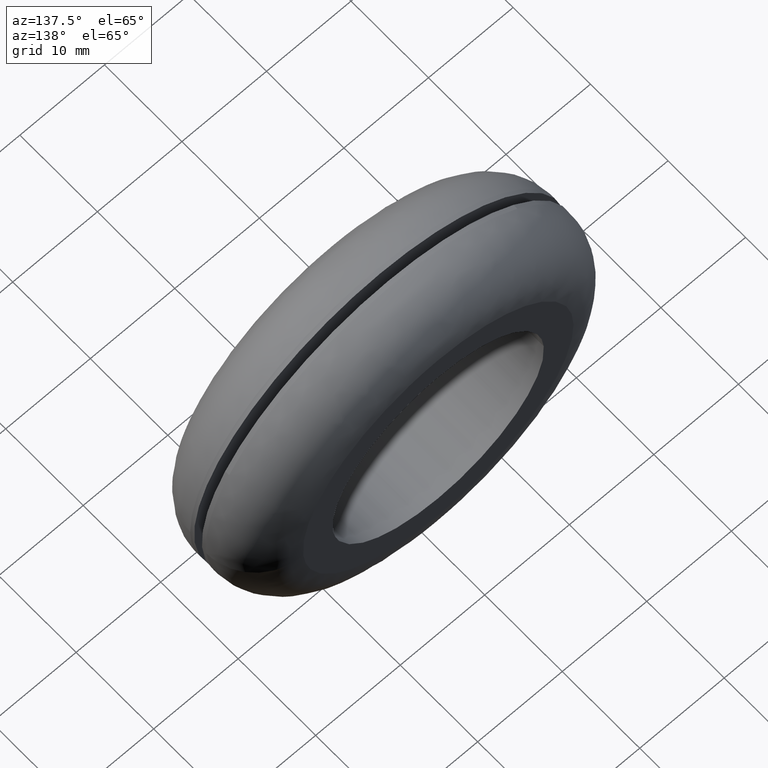
[diagram: clean part render]
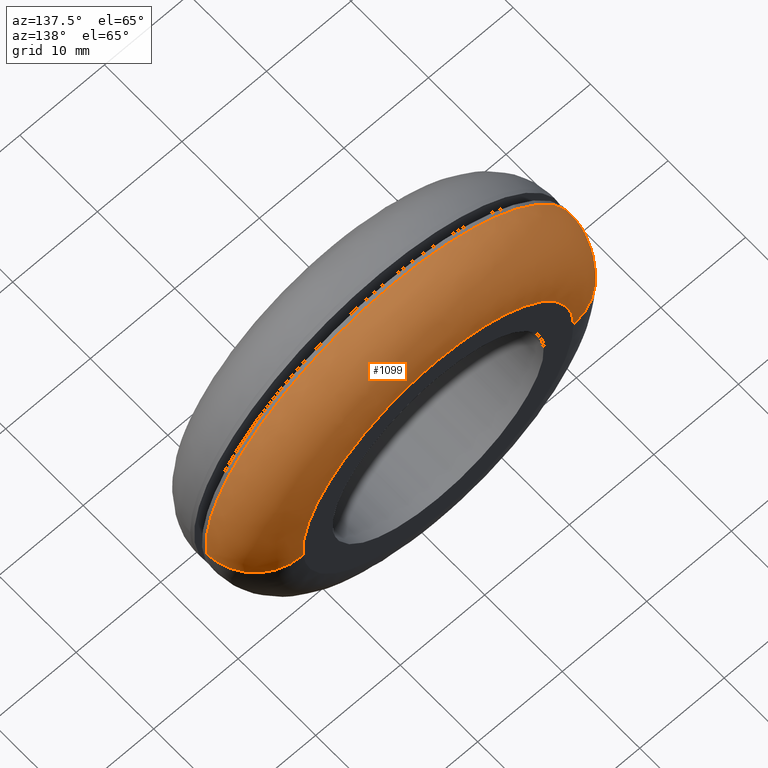
[diagram: same view with one face highlighted and labeled with its STEP entity id]
A machine part, auxiliary view. The second image highlights one B-rep face of the part: STEP entity #1099.
In plain terms, the highlighted face is a freeform B-spline surface patch.
Its self-contained STEP definition (entity closure, byte-faithful):
#464=CARTESIAN_POINT('',(19.248823373757212,8.000000000000533,10.652830549946870));
#465=VERTEX_POINT('',#464);
#466=CARTESIAN_POINT('',(0.0,8.0,22.0));
#467=VERTEX_POINT('',#466);
#468=CARTESIAN_POINT('',(19.248823373757208,8.000000000000533,10.652830549946874));
#469=CARTESIAN_POINT('',(12.968986366278509,8.000000000000002,22.000000000000007));
#470=CARTESIAN_POINT('',(0.0,8.0,22.0));
#478=(BOUNDED_CURVE()B_SPLINE_CURVE(2,(#468,#469,#470),.UNSPECIFIED.,.F.,.U.)B_SPLINE_CURVE_WITH_KNOTS((3,3),(0.332484260513294,0.500000000000000),.UNSPECIFIED.)CURVE()GEOMETRIC_REPRESENTATION_ITEM()RATIONAL_B_SPLINE_CURVE((0.870495160132448,0.803743103439292,1.0))REPRESENTATION_ITEM(''));
#479=EDGE_CURVE('',#465,#467,#478,.T.);
#481=CARTESIAN_POINT('',(-14.862983672340979,8.000000000013181,16.220102230123938));
#482=VERTEX_POINT('',#481);
#483=CARTESIAN_POINT('',(0.0,8.0,22.0));
#484=CARTESIAN_POINT('',(-8.555331401854355,8.000000000000002,21.999999999999996));
#485=CARTESIAN_POINT('',(-14.862983672340976,8.000000000013182,16.220102230123949));
#493=(BOUNDED_CURVE()B_SPLINE_CURVE(2,(#483,#484,#485),.UNSPECIFIED.,.F.,.U.)B_SPLINE_CURVE_WITH_KNOTS((3,3),(0.500000000000000,0.618415200752421),.UNSPECIFIED.)CURVE()GEOMETRIC_REPRESENTATION_ITEM()RATIONAL_B_SPLINE_CURVE((1.0,0.861267962780729,0.853959781866357))REPRESENTATION_ITEM(''));
#494=EDGE_CURVE('',#467,#482,#493,.T.);
#563=CARTESIAN_POINT('',(21.946444824489291,8.000000000050179,-1.534131534662882));
#564=VERTEX_POINT('',#563);
#565=CARTESIAN_POINT('',(21.946444824489294,8.000000000050179,-1.534131534662883));
#566=CARTESIAN_POINT('',(22.000000000000004,8.0,-0.768000549246831));
#567=CARTESIAN_POINT('',(22.0,8.0,-3.673819E-016));
#568=CARTESIAN_POINT('',(21.999999999999996,8.0,5.681671692190288));
#569=CARTESIAN_POINT('',(19.248823373757208,8.000000000000533,10.652830549946874));
#577=(BOUNDED_CURVE()B_SPLINE_CURVE(2,(#565,#566,#567,#568,#569),.UNSPECIFIED.,.F.,.U.)B_SPLINE_CURVE_WITH_KNOTS((3,2,3),(0.237833686535085,0.250000000000000,0.332484260513294),.UNSPECIFIED.)CURVE()GEOMETRIC_REPRESENTATION_ITEM()RATIONAL_B_SPLINE_CURVE((0.972879876386962,0.985746277152670,1.0,0.903363677747256,0.870495160132448))REPRESENTATION_ITEM(''));
#578=EDGE_CURVE('',#564,#465,#577,.T.);
#614=CARTESIAN_POINT('',(-21.998262972483801,8.000000000050177,0.276452877445863));
#615=VERTEX_POINT('',#614);
#616=CARTESIAN_POINT('',(-14.862983672340976,8.000000000013182,16.220102230123949));
#617=CARTESIAN_POINT('',(-21.878688401845952,8.000000000028200,9.791393991096818));
#618=CARTESIAN_POINT('',(-21.998262972483801,8.000000000050177,0.276452877445863));
#626=(BOUNDED_CURVE()B_SPLINE_CURVE(2,(#616,#617,#618),.UNSPECIFIED.,.F.,.U.)B_SPLINE_CURVE_WITH_KNOTS((3,3),(0.618415200752421,0.747784295921534),.UNSPECIFIED.)CURVE()GEOMETRIC_REPRESENTATION_ITEM()RATIONAL_B_SPLINE_CURVE((0.853959781866357,0.845975564078294,0.994854295643565))REPRESENTATION_ITEM(''));
#627=EDGE_CURVE('',#482,#615,#626,.T.);
#1004=CARTESIAN_POINT('',(15.544843214984359,13.985476149087738,-1.086636831070917));
#1005=CARTESIAN_POINT('',(15.575942264228871,13.985476149087750,-0.641750526081099));
#1006=CARTESIAN_POINT('',(15.581546365469604,13.985476149087749,-0.195813793706776));
#1007=CARTESIAN_POINT('',(15.777360159176384,13.985476149087745,15.385732571762828));
#1008=CARTESIAN_POINT('',(0.195813793706777,13.985476149087749,15.581546365469604));
#1009=CARTESIAN_POINT('',(-15.385732571762828,13.985476149087745,15.777360159176384));
#1010=CARTESIAN_POINT('',(-15.581546365469604,13.985476149087749,0.195813793706777));
#1011=CARTESIAN_POINT('',(22.410535455934841,14.465223589334373,-1.566571813793874));
#1012=CARTESIAN_POINT('',(22.455370024936347,14.465223589334371,-0.925192536180866));
#1013=CARTESIAN_POINT('',(22.463449290054530,14.465223589334373,-0.282298888830010));
#1014=CARTESIAN_POINT('',(22.745748178884529,14.465223589334371,22.181150401224510));
#1015=CARTESIAN_POINT('',(0.282298888830011,14.465223589334373,22.463449290054530));
#1016=CARTESIAN_POINT('',(-22.181150401224510,14.465223589334371,22.745748178884536));
#1017=CARTESIAN_POINT('',(-22.463449290054530,14.465223589334373,0.282298888830013));
#1018=CARTESIAN_POINT('',(21.931956448723739,7.582777215670896,-1.533117531327285));
#1019=CARTESIAN_POINT('',(21.975833571457901,7.582777215670893,-0.905434966072147));
#1020=CARTESIAN_POINT('',(21.983740303140337,7.582777215670896,-0.276270370581586));
#1021=CARTESIAN_POINT('',(22.260010673721919,7.582777215670895,21.707469932558734));
#1022=CARTESIAN_POINT('',(0.276270370581587,7.582777215670896,21.983740303140337));
#1023=CARTESIAN_POINT('',(-21.707469932558734,7.582777215670895,22.260010673721919));
#1024=CARTESIAN_POINT('',(-21.983740303140337,7.582777215670896,0.276270370581588));
#1032=(BOUNDED_SURFACE()B_SPLINE_SURFACE(2,2,((#1004,#1011,#1018),(#1005,#1012,#1019),(#1006,#1013,#1020),(#1007,#1014,#1021),(#1008,#1015,#1022),(#1009,#1016,#1023),(#1010,#1017,#1024)),.UNSPECIFIED.,.F.,.F.,.U.)B_SPLINE_SURFACE_WITH_KNOTS((3,2,2,3),(3,3),(0.0,1.457067796127990,37.883797438564237,74.310527081000487),(0.0,10.934244388405540),.UNSPECIFIED.)GEOMETRIC_REPRESENTATION_ITEM()RATIONAL_B_SPLINE_SURFACE(((0.895729780140252,0.587800196502176,0.895729746073599),(0.905606538263746,0.594281571236513,0.905606503821457),(0.916342144029433,0.601326543189608,0.916342109178844),(0.647951743930232,0.425202076396837,0.647951719287144),(0.916342144029433,0.601326543189608,0.916342109178844),(0.647951743930232,0.425202076396837,0.647951719287144),(0.916342144029433,0.601326543189608,0.916342109178844)))REPRESENTATION_ITEM('')SURFACE());
#1033=ORIENTED_EDGE('',*,*,#479,.F.);
#1034=ORIENTED_EDGE('',*,*,#578,.F.);
#1035=CARTESIAN_POINT('',(15.961050781845570,14.0,-1.115732025297409));
#1036=VERTEX_POINT('',#1035);
#1037=CARTESIAN_POINT('',(15.961050781845568,14.000000000000004,-1.115732025297409));
#1038=CARTESIAN_POINT('',(21.946444824389399,13.999999999192037,-1.534131534652715));
#1039=CARTESIAN_POINT('',(21.946444824489291,8.000000000050179,-1.534131534662882));
#1047=(BOUNDED_CURVE()B_SPLINE_CURVE(2,(#1037,#1038,#1039),.UNSPECIFIED.,.F.,.U.)B_SPLINE_CURVE_WITH_KNOTS((3,3),(-1.734750791518477,-0.265249208358978),.UNSPECIFIED.)CURVE()GEOMETRIC_REPRESENTATION_ITEM()RATIONAL_B_SPLINE_CURVE((0.869031711826787,0.614498216560397,0.869031711869240))REPRESENTATION_ITEM(''));
#1048=EDGE_CURVE('',#1036,#564,#1047,.T.);
#1049=ORIENTED_EDGE('',*,*,#1048,.F.);
#1050=CARTESIAN_POINT('',(0.0,14.0,16.0));
#1051=VERTEX_POINT('',#1050);
#1052=CARTESIAN_POINT('',(15.961050781845566,13.999999999999996,-1.115732025297410));
#1053=CARTESIAN_POINT('',(15.999999999999998,13.999999999999996,-0.558545854057783));
#1054=CARTESIAN_POINT('',(16.0,14.0,-3.673819E-016));
#1055=CARTESIAN_POINT('',(15.999999999999998,13.999999999999998,15.999999999999998));
#1056=CARTESIAN_POINT('',(0.0,14.0,16.0));
#1064=(BOUNDED_CURVE()B_SPLINE_CURVE(2,(#1052,#1053,#1054,#1055,#1056),.UNSPECIFIED.,.F.,.U.)B_SPLINE_CURVE_WITH_KNOTS((3,2,3),(0.237833686533795,0.250000000000000,0.500000000000000),.UNSPECIFIED.)CURVE()GEOMETRIC_REPRESENTATION_ITEM()RATIONAL_B_SPLINE_CURVE((0.972879876384233,0.985746277151159,1.0,0.707106781186548,1.0))REPRESENTATION_ITEM(''));
#1065=EDGE_CURVE('',#1036,#1051,#1064,.T.);
#1066=ORIENTED_EDGE('',*,*,#1065,.T.);
#1067=CARTESIAN_POINT('',(-15.998736707370449,14.0,0.201056638142736));
#1068=VERTEX_POINT('',#1067);
#1069=CARTESIAN_POINT('',(0.0,14.0,16.0));
#1070=CARTESIAN_POINT('',(-15.800190878501752,13.999999999999998,16.000000000000004));
#1071=CARTESIAN_POINT('',(-15.998736707370455,14.000000000000005,0.201056638142736));
#1079=(BOUNDED_CURVE()B_SPLINE_CURVE(2,(#1069,#1070,#1071),.UNSPECIFIED.,.F.,.U.)B_SPLINE_CURVE_WITH_KNOTS((3,3),(0.500000000000000,0.747784295921558),.UNSPECIFIED.)CURVE()GEOMETRIC_REPRESENTATION_ITEM()RATIONAL_B_SPLINE_CURVE((1.0,0.709702639984439,0.994854295643621))REPRESENTATION_ITEM(''));
#1080=EDGE_CURVE('',#1051,#1068,#1079,.T.);
#1081=ORIENTED_EDGE('',*,*,#1080,.T.);
#1082=CARTESIAN_POINT('',(-15.998736707370451,14.000000000000005,0.201056638142736));
#1083=CARTESIAN_POINT('',(-21.998262972383596,13.999999999780993,0.276452877432481));
#1084=CARTESIAN_POINT('',(-21.998262972483801,8.000000000050177,0.276452877445863));
#1092=(BOUNDED_CURVE()B_SPLINE_CURVE(2,(#1082,#1083,#1084),.UNSPECIFIED.,.F.,.U.)B_SPLINE_CURVE_WITH_KNOTS((3,3),(-1.734750791620473,-0.265249208358979),.UNSPECIFIED.)CURVE()GEOMETRIC_REPRESENTATION_ITEM()RATIONAL_B_SPLINE_CURVE((0.889029723563000,0.628638946227104,0.889029723570282))REPRESENTATION_ITEM(''));
#1093=EDGE_CURVE('',#1068,#615,#1092,.T.);
#1094=ORIENTED_EDGE('',*,*,#1093,.T.);
#1095=ORIENTED_EDGE('',*,*,#627,.F.);
#1096=ORIENTED_EDGE('',*,*,#494,.F.);
#1097=EDGE_LOOP('',(#1033,#1034,#1049,#1066,#1081,#1094,#1095,#1096));
#1098=FACE_OUTER_BOUND('',#1097,.T.);
#1099=ADVANCED_FACE('',(#1098),#1032,.T.);